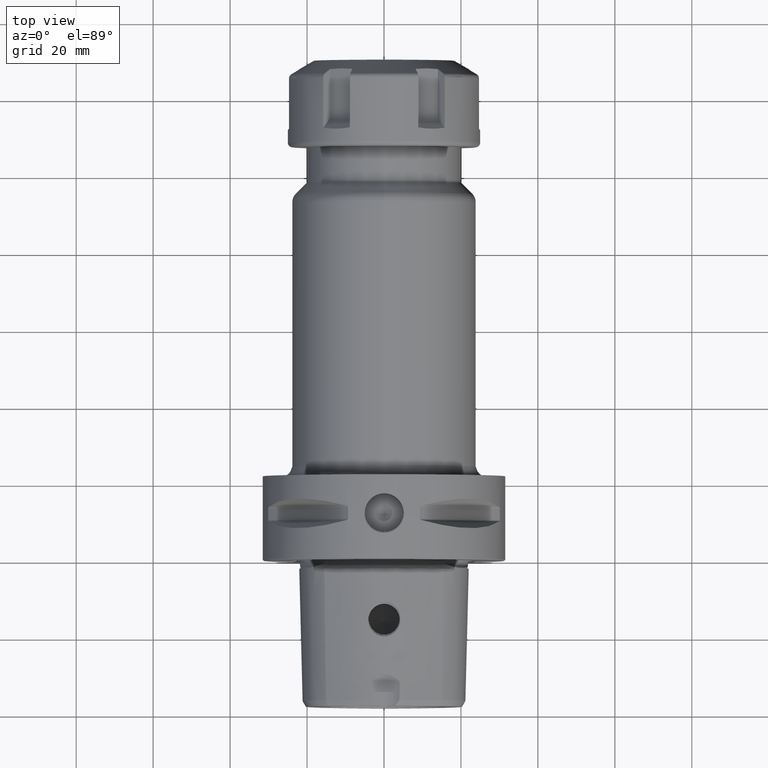
[diagram: clean part render]
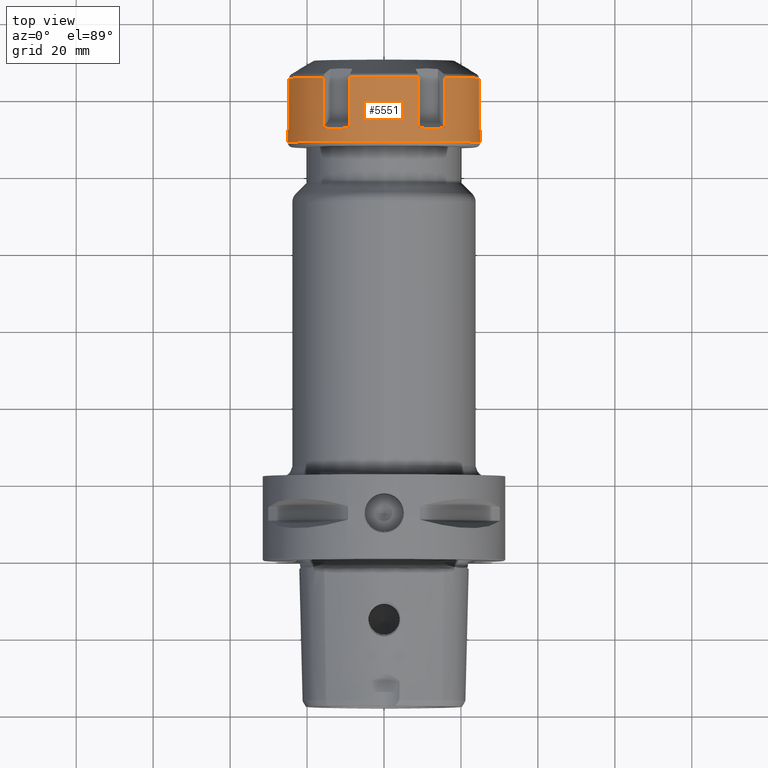
[diagram: same view with one face highlighted and labeled with its STEP entity id]
A machine part, top view. The second image highlights one B-rep face of the part: STEP entity #5551.
In plain terms, the highlighted cylindrical surface (partial cylindrical patch) has radius 25 mm, axis along (0, 1, 0).
Its self-contained STEP definition (entity closure, byte-faithful):
#4464=DIRECTION('',(-9.999994740307E-1,1.025640486187E-3,1.577133168835E-12));
#4465=VECTOR('',#4464,3.250001709401E0);
#4466=CARTESIAN_POINT('',(4.5E0,2.499666666667E1,1.417951640115E-14));
#4467=LINE('',#4466,#4465);
#4473=DIRECTION('',(-9.999994740307E-1,-1.025640486184E-3,-1.578379367537E-12));
#4474=VECTOR('',#4473,3.250001709401E0);
#4475=CARTESIAN_POINT('',(4.5E0,-2.499666666667E1,-1.240051271650E-14));
#4476=LINE('',#4475,#4474);
#4519=CARTESIAN_POINT('',(1.788119784648E1,1.577876823125E1,1.939150517893E1));
#4539=CARTESIAN_POINT('',(1.788119784648E1,2.468292021820E1,3.969061539222E0));
#4541=CARTESIAN_POINT('',(1.788119784648E1,-8.904151986948E0,2.336056671815E1));
#4561=CARTESIAN_POINT('',(1.788119784648E1,8.904151986948E0,2.336056671815E1));
#4563=CARTESIAN_POINT('',(1.788119784648E1,-2.468292021820E1,3.969061539222E0));
#4583=CARTESIAN_POINT('',(1.788119784648E1,-1.577876823125E1,1.939150517893E1));
#4793=DIRECTION('',(1.E0,0.E0,0.E0));
#4794=VECTOR('',#4793,1.307411806468E1);
#4795=CARTESIAN_POINT('',(4.807079781803E0,-2.468292021820E1,3.969061539222E0));
#4796=LINE('',#4795,#4794);
#4797=CARTESIAN_POINT('',(4.807079781803E0,-2.468292021820E1,3.969061539222E0));
#4798=CARTESIAN_POINT('',(4.729701493378E0,-2.476029850662E1,3.487859093522E0));
#4799=CARTESIAN_POINT('',(4.609219197891E0,-2.488166969100E1,2.550817383639E0));
#4800=CARTESIAN_POINT('',(4.504536623461E0,-2.498235226543E1,1.228026509027E0));
#4801=CARTESIAN_POINT('',(4.5E0,-2.499666666667E1,4.003888699202E-1));
#4802=CARTESIAN_POINT('',(4.5E0,-2.499666666667E1,-1.240051271650E-14));
#4804=CARTESIAN_POINT('',(1.25E0,0.E0,0.E0));
#4805=DIRECTION('',(-1.E0,0.E0,0.E0));
#4806=DIRECTION('',(0.E0,-1.E0,0.E0));
#4807=AXIS2_PLACEMENT_3D('',#4804,#4805,#4806);
#4809=CARTESIAN_POINT('',(4.5E0,2.499666666667E1,1.417951640115E-14));
#4810=CARTESIAN_POINT('',(4.5E0,2.499666666667E1,1.451714455632E-1));
#4811=CARTESIAN_POINT('',(4.487872521708E0,2.499903346707E1,4.463428212677E-1));
#4812=CARTESIAN_POINT('',(4.506996588005E0,2.498383245127E1,9.338081408940E-1));
#4813=CARTESIAN_POINT('',(4.530046438305E0,2.495973141581E1,1.454059244478E0));
#4814=CARTESIAN_POINT('',(4.569007848129E0,2.492105169613E1,2.013026454191E0));
#4815=CARTESIAN_POINT('',(4.624405857984E0,2.486557811087E1,2.614252934544E0));
#4816=CARTESIAN_POINT('',(4.700654693787E0,2.478934988654E1,3.262138709532E0));
#4817=CARTESIAN_POINT('',(4.768334245703E0,2.472166575430E1,3.728109624791E0));
#4818=CARTESIAN_POINT('',(4.807079781803E0,2.468292021820E1,3.969061539222E0));
#4820=DIRECTION('',(1.E0,0.E0,0.E0));
#4821=VECTOR('',#4820,1.307411806468E1);
#4822=CARTESIAN_POINT('',(4.807079781803E0,2.468292021820E1,3.969061539222E0));
#4823=LINE('',#4822,#4821);
#4824=CARTESIAN_POINT('',(1.788119784648E1,0.E0,0.E0));
#4825=DIRECTION('',(-1.E0,0.E0,0.E0));
#4826=DIRECTION('',(0.E0,6.311507292499E-1,7.756602071573E-1));
#4827=AXIS2_PLACEMENT_3D('',#4824,#4825,#4826);
#4829=DIRECTION('',(1.E0,0.E0,0.E0));
#4830=VECTOR('',#4829,1.307411806468E1);
#4831=CARTESIAN_POINT('',(4.807079781803E0,1.577876823125E1,1.939150517893E1));
#4832=LINE('',#4831,#4830);
#4833=CARTESIAN_POINT('',(4.807079781803E0,1.577876823125E1,1.939150517893E1));
#4834=CARTESIAN_POINT('',(4.381591242552E0,1.369997375277E1,2.108300957602E1));
#4835=CARTESIAN_POINT('',(4.381591242552E0,1.140843500467E1,2.240603008909E1));
#4836=CARTESIAN_POINT('',(4.807079781803E0,8.904151986948E0,2.336056671815E1));
#4838=DIRECTION('',(1.E0,0.E0,0.E0));
#4839=VECTOR('',#4838,1.307411806468E1);
#4840=CARTESIAN_POINT('',(4.807079781803E0,8.904151986948E0,2.336056671815E1));
#4841=LINE('',#4840,#4839);
#4842=CARTESIAN_POINT('',(1.788119784648E1,0.E0,0.E0));
#4843=DIRECTION('',(-1.E0,0.E0,0.E0));
#4844=DIRECTION('',(0.E0,-3.561660794779E-1,9.344226687262E-1));
#4845=AXIS2_PLACEMENT_3D('',#4842,#4843,#4844);
#4847=DIRECTION('',(1.E0,0.E0,0.E0));
#4848=VECTOR('',#4847,1.307411806468E1);
#4849=CARTESIAN_POINT('',(4.807079781803E0,-8.904151986948E0,2.336056671815E1));
#4850=LINE('',#4849,#4848);
#4851=CARTESIAN_POINT('',(4.807079781803E0,-8.904151986948E0,2.336056671815E1));
#4852=CARTESIAN_POINT('',(4.381591242552E0,-1.140843500467E1,2.240603008909E1));
#4853=CARTESIAN_POINT('',(4.381591242552E0,-1.369997375277E1,2.108300957602E1));
#4854=CARTESIAN_POINT('',(4.807079781803E0,-1.577876823125E1,1.939150517893E1));
#4856=DIRECTION('',(1.E0,0.E0,0.E0));
#4857=VECTOR('',#4856,1.307411806468E1);
#4858=CARTESIAN_POINT('',(4.807079781803E0,-1.577876823125E1,1.939150517893E1));
#4859=LINE('',#4858,#4857);
#4860=CARTESIAN_POINT('',(1.788119784648E1,0.E0,0.E0));
#4861=DIRECTION('',(-1.E0,0.E0,0.E0));
#4862=DIRECTION('',(0.E0,-9.873168087279E-1,1.587624615689E-1));
#4863=AXIS2_PLACEMENT_3D('',#4860,#4861,#4862);
#5023=CARTESIAN_POINT('',(1.25E0,2.5E1,0.E0));
#5024=CARTESIAN_POINT('',(1.25E0,-2.5E1,0.E0));
#5025=VERTEX_POINT('',#5023);
#5026=VERTEX_POINT('',#5024);
#5032=VERTEX_POINT('',#4539);
#5034=CARTESIAN_POINT('',(4.807079781803E0,2.468292021820E1,3.969061539222E0));
#5035=VERTEX_POINT('',#5034);
#5047=VERTEX_POINT('',#4561);
#5048=VERTEX_POINT('',#4519);
#5049=CARTESIAN_POINT('',(4.807079781803E0,8.904151986948E0,2.336056671815E1));
#5050=VERTEX_POINT('',#5049);
#5051=CARTESIAN_POINT('',(4.807079781803E0,1.577876823125E1,1.939150517893E1));
#5052=VERTEX_POINT('',#5051);
#5062=VERTEX_POINT('',#4583);
#5063=VERTEX_POINT('',#4541);
#5064=CARTESIAN_POINT('',(4.807079781803E0,-1.577876823125E1,1.939150517893E1));
#5065=VERTEX_POINT('',#5064);
#5066=CARTESIAN_POINT('',(4.807079781803E0,-8.904151986948E0,2.336056671815E1));
#5067=VERTEX_POINT('',#5066);
#5079=VERTEX_POINT('',#4563);
#5080=CARTESIAN_POINT('',(4.807079781803E0,-2.468292021820E1,3.969061539222E0));
#5081=VERTEX_POINT('',#5080);
#5119=CARTESIAN_POINT('',(4.5E0,-2.499666666667E1,-1.240051271650E-14));
#5120=VERTEX_POINT('',#5119);
#5121=CARTESIAN_POINT('',(4.5E0,2.499666666667E1,1.417951640115E-14));
#5122=VERTEX_POINT('',#5121);
#5520=CARTESIAN_POINT('',(-1.125E0,0.E0,0.E0));
#5521=DIRECTION('',(1.E0,0.E0,0.E0));
#5522=DIRECTION('',(0.E0,-1.E0,0.E0));
#5523=AXIS2_PLACEMENT_3D('',#5520,#5521,#5522);
#5524=CYLINDRICAL_SURFACE('',#5523,2.5E1);
#5525=ORIENTED_EDGE('',*,*,#5483,.F.);
#5526=ORIENTED_EDGE('',*,*,#5500,.T.);
#5527=ORIENTED_EDGE('',*,*,#5256,.T.);
#5529=ORIENTED_EDGE('',*,*,#5528,.T.);
#5530=ORIENTED_EDGE('',*,*,#5252,.F.);
#5532=ORIENTED_EDGE('',*,*,#5531,.T.);
#5534=ORIENTED_EDGE('',*,*,#5533,.T.);
#5535=ORIENTED_EDGE('',*,*,#5283,.F.);
#5536=ORIENTED_EDGE('',*,*,#5373,.F.);
#5538=ORIENTED_EDGE('',*,*,#5537,.T.);
#5540=ORIENTED_EDGE('',*,*,#5539,.T.);
#5541=ORIENTED_EDGE('',*,*,#5299,.F.);
#5543=ORIENTED_EDGE('',*,*,#5542,.F.);
#5545=ORIENTED_EDGE('',*,*,#5544,.T.);
#5547=ORIENTED_EDGE('',*,*,#5546,.T.);
#5548=ORIENTED_EDGE('',*,*,#5315,.F.);
#5549=EDGE_LOOP('',(#5525,#5526,#5527,#5529,#5530,#5532,#5534,#5535,#5536,#5538,
#5540,#5541,#5543,#5545,#5547,#5548));
#5550=FACE_OUTER_BOUND('',#5549,.F.);
#5551=ADVANCED_FACE('',(#5550),#5524,.T.);
#4803=B_SPLINE_CURVE_WITH_KNOTS('',3,(#4797,#4798,#4799,#4800,#4801,#4802),
.UNSPECIFIED.,.F.,.F.,(4,1,1,4),(0.E0,3.333333333333E-1,6.666666666667E-1,1.E0),
.UNSPECIFIED.);
#4808=CIRCLE('',#4807,2.5E1);
#4819=B_SPLINE_CURVE_WITH_KNOTS('',3,(#4809,#4810,#4811,#4812,#4813,#4814,#4815,
#4816,#4817,#4818),.UNSPECIFIED.,.F.,.F.,(4,1,1,1,1,1,1,4),(0.E0,
1.428571428571E-1,2.857142857143E-1,4.285714285714E-1,5.714285714286E-1,
7.142857142857E-1,8.571428571429E-1,1.E0),.UNSPECIFIED.);
#4828=CIRCLE('',#4827,2.5E1);
#4837=B_SPLINE_CURVE_WITH_KNOTS('',3,(#4833,#4834,#4835,#4836),.UNSPECIFIED.,
.F.,.F.,(4,4),(0.E0,1.E0),.UNSPECIFIED.);
#4846=CIRCLE('',#4845,2.5E1);
#4855=B_SPLINE_CURVE_WITH_KNOTS('',3,(#4851,#4852,#4853,#4854),.UNSPECIFIED.,
.F.,.F.,(4,4),(0.E0,1.E0),.UNSPECIFIED.);
#4864=CIRCLE('',#4863,2.5E1);
#5252=EDGE_CURVE('',#5122,#5025,#4467,.T.);
#5256=EDGE_CURVE('',#5120,#5026,#4476,.T.);
#5283=EDGE_CURVE('',#5048,#5032,#4828,.T.);
#5299=EDGE_CURVE('',#5063,#5047,#4846,.T.);
#5315=EDGE_CURVE('',#5079,#5062,#4864,.T.);
#5373=EDGE_CURVE('',#5052,#5048,#4832,.T.);
#5483=EDGE_CURVE('',#5081,#5079,#4796,.T.);
#5500=EDGE_CURVE('',#5081,#5120,#4803,.T.);
#5528=EDGE_CURVE('',#5026,#5025,#4808,.T.);
#5531=EDGE_CURVE('',#5122,#5035,#4819,.T.);
#5533=EDGE_CURVE('',#5035,#5032,#4823,.T.);
#5537=EDGE_CURVE('',#5052,#5050,#4837,.T.);
#5539=EDGE_CURVE('',#5050,#5047,#4841,.T.);
#5542=EDGE_CURVE('',#5067,#5063,#4850,.T.);
#5544=EDGE_CURVE('',#5067,#5065,#4855,.T.);
#5546=EDGE_CURVE('',#5065,#5062,#4859,.T.);